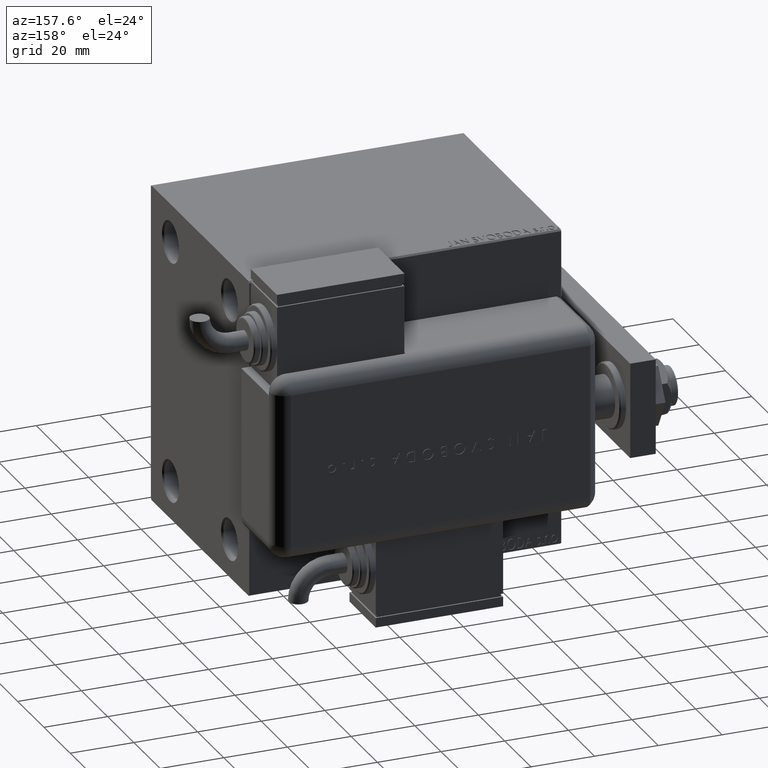
[diagram: clean part render]
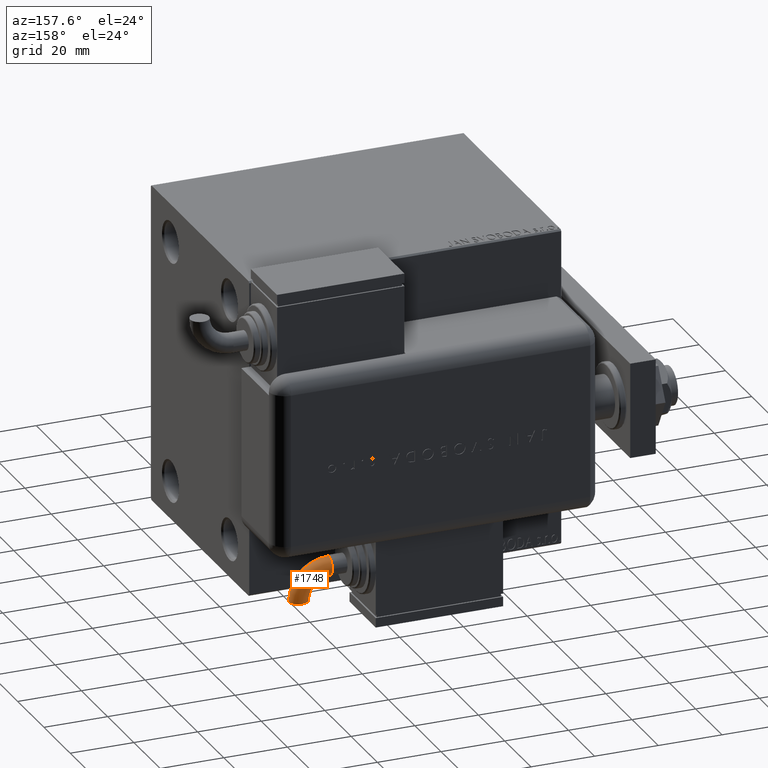
[diagram: same view with one face highlighted and labeled with its STEP entity id]
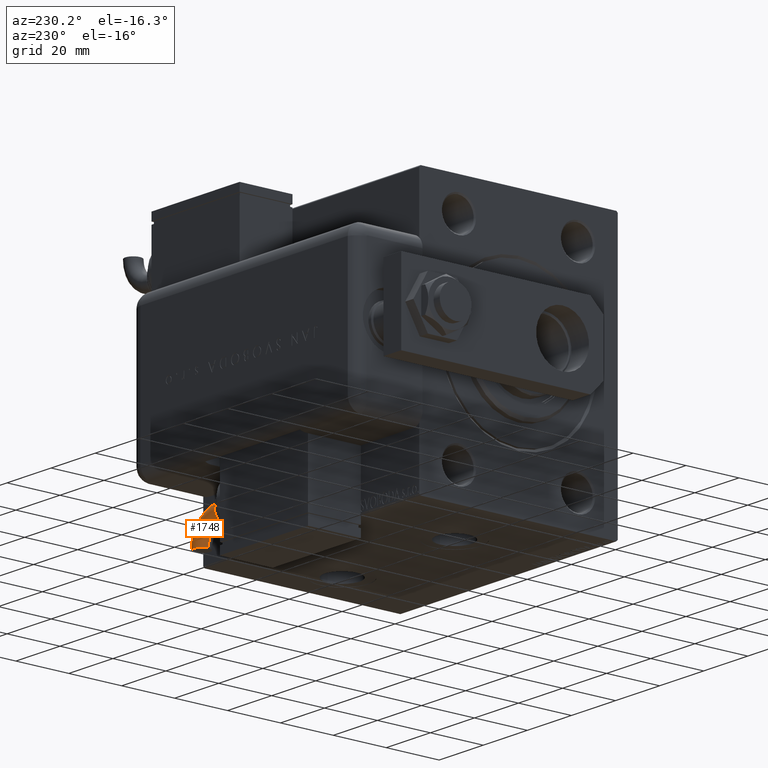
[diagram: same view with one face highlighted and labeled with its STEP entity id]
A machine part, auxiliary view. The second image highlights one B-rep face of the part: STEP entity #1748.
A second angle (auxiliary view) of the same face is appended — the face is thin or edge-on in the first view.
In plain terms, the highlighted toroidal blend (fillet) surface has major radius 9.5072 mm and minor (blend) radius 3 mm.
Its self-contained STEP definition (entity closure, byte-faithful):
#372 = DIRECTION ( 'NONE',  ( 0.000000000000000000, 0.000000000000000000, 1.000000000000000000 ) ) ;
#406 = EDGE_CURVE ( 'NONE', #52117, #57350, #59631, .T. ) ;
#1287 = DIRECTION ( 'NONE',  ( -7.402363701065945741E-06, 0.9999999999726024713, 0.000000000000000000 ) ) ;
#1748 = ADVANCED_FACE ( 'NONE', ( #27484 ), #28530, .T. ) ;
#4961 = CIRCLE ( 'NONE', #33134, 2.999999999999996003 ) ;
#6143 = DIRECTION ( 'NONE',  ( -0.9999999999726024713, -7.402363701169985951E-06, 0.000000000000000000 ) ) ;
#6268 = CARTESIAN_POINT ( 'NONE',  ( -37.25922829613910636, -9.507259688020280208, -3.673940397551225891E-16 ) ) ;
#6271 = DIRECTION ( 'NONE',  ( -1.156482317317872908E-15, 1.000000000000000000, 0.000000000000000000 ) ) ;
#6519 = EDGE_LOOP ( 'NONE', ( #16496, #49093, #15623, #40268, #46098 ) ) ;
#7772 = DIRECTION ( 'NONE',  ( 1.000000000000000000, 0.000000000000000000, 0.000000000000000000 ) ) ;
#8033 = EDGE_CURVE ( 'NONE', #52117, #30644, #43357, .T. ) ;
#8604 = CARTESIAN_POINT ( 'NONE',  ( -30.75201677704342274, -9.507211519273942812, -3.673940397442055924E-16 ) ) ;
#9053 = CARTESIAN_POINT ( 'NONE',  ( -30.75201677704342274, 2.081668171172168829E-14, 2.999999999999997335 ) ) ;
#11139 = CARTESIAN_POINT ( 'NONE',  ( -30.75201677704342274, 2.081668171172168513E-14, 0.000000000000000000 ) ) ;
#13714 = CIRCLE ( 'NONE', #13875, 2.999999999999996891 ) ;
#13875 = AXIS2_PLACEMENT_3D ( 'NONE', #22038, #1287, #6143 ) ;
#15623 = ORIENTED_EDGE ( 'NONE', *, *, #28979, .T. ) ;
#16496 = ORIENTED_EDGE ( 'NONE', *, *, #406, .F. ) ;
#22038 = CARTESIAN_POINT ( 'NONE',  ( -40.25922829605691078, -9.507281895111381331, 0.000000000000000000 ) ) ;
#25532 = CIRCLE ( 'NONE', #42106, 6.507211519273966793 ) ;
#26754 = CARTESIAN_POINT ( 'NONE',  ( -30.75201677704341918, -2.999999999999976463, -3.673940397442056910E-16 ) ) ;
#26797 = CARTESIAN_POINT ( 'NONE',  ( -30.75201677704342274, 2.081668171172168513E-14, 0.000000000000000000 ) ) ;
#27423 = DIRECTION ( 'NONE',  ( 1.000000000000000000, 0.000000000000000000, 0.000000000000000000 ) ) ;
#27484 = FACE_OUTER_BOUND ( 'NONE', #6519, .T. ) ;
#28530 = TOROIDAL_SURFACE ( 'NONE', #51901, 9.507211519273964129, 2.999999999999996891 ) ;
#28979 = EDGE_CURVE ( 'NONE', #30644, #35620, #13714, .T. ) ;
#30644 = VERTEX_POINT ( 'NONE', #35412 ) ;
#31639 = DIRECTION ( 'NONE',  ( -1.156482317317872908E-15, 1.000000000000000000, 0.000000000000000000 ) ) ;
#31967 = DIRECTION ( 'NONE',  ( 0.000000000000000000, 0.000000000000000000, 1.000000000000000000 ) ) ;
#33092 = DIRECTION ( 'NONE',  ( 1.000000000000000000, 1.025520576932673761E-15, 0.000000000000000000 ) ) ;
#33134 = AXIS2_PLACEMENT_3D ( 'NONE', #11139, #33092, #6271 ) ;
#33312 = AXIS2_PLACEMENT_3D ( 'NONE', #26797, #45380, #31639 ) ;
#33641 = AXIS2_PLACEMENT_3D ( 'NONE', #37453, #31967, #27423 ) ;
#35412 = CARTESIAN_POINT ( 'NONE',  ( -43.25922829597471519, -9.507304102202486007, 0.000000000000000000 ) ) ;
#35620 = VERTEX_POINT ( 'NONE', #6268 ) ;
#37453 = CARTESIAN_POINT ( 'NONE',  ( -30.75201677704342274, -9.507211519273942812, 0.000000000000000000 ) ) ;
#38721 = CARTESIAN_POINT ( 'NONE',  ( -30.75201677704342629, 3.000000000000017319, 0.000000000000000000 ) ) ;
#40268 = ORIENTED_EDGE ( 'NONE', *, *, #57088, .F. ) ;
#41490 = CARTESIAN_POINT ( 'NONE',  ( -30.75201677704342274, -9.507211519273942812, 0.000000000000000000 ) ) ;
#42106 = AXIS2_PLACEMENT_3D ( 'NONE', #8604, #372, #59775 ) ;
#43357 = CIRCLE ( 'NONE', #33641, 12.50721151927396058 ) ;
#45380 = DIRECTION ( 'NONE',  ( 1.000000000000000000, 1.025520576932673761E-15, 0.000000000000000000 ) ) ;
#46098 = ORIENTED_EDGE ( 'NONE', *, *, #52701, .F. ) ;
#49093 = ORIENTED_EDGE ( 'NONE', *, *, #8033, .T. ) ;
#49522 = DIRECTION ( 'NONE',  ( 0.000000000000000000, 0.000000000000000000, 1.000000000000000000 ) ) ;
#51901 = AXIS2_PLACEMENT_3D ( 'NONE', #41490, #49522, #7772 ) ;
#52117 = VERTEX_POINT ( 'NONE', #38721 ) ;
#52701 = EDGE_CURVE ( 'NONE', #57350, #57254, #4961, .T. ) ;
#57088 = EDGE_CURVE ( 'NONE', #57254, #35620, #25532, .T. ) ;
#57254 = VERTEX_POINT ( 'NONE', #26754 ) ;
#57350 = VERTEX_POINT ( 'NONE', #9053 ) ;
#59631 = CIRCLE ( 'NONE', #33312, 2.999999999999996003 ) ;
#59775 = DIRECTION ( 'NONE',  ( 1.000000000000000000, 0.000000000000000000, 0.000000000000000000 ) ) ;